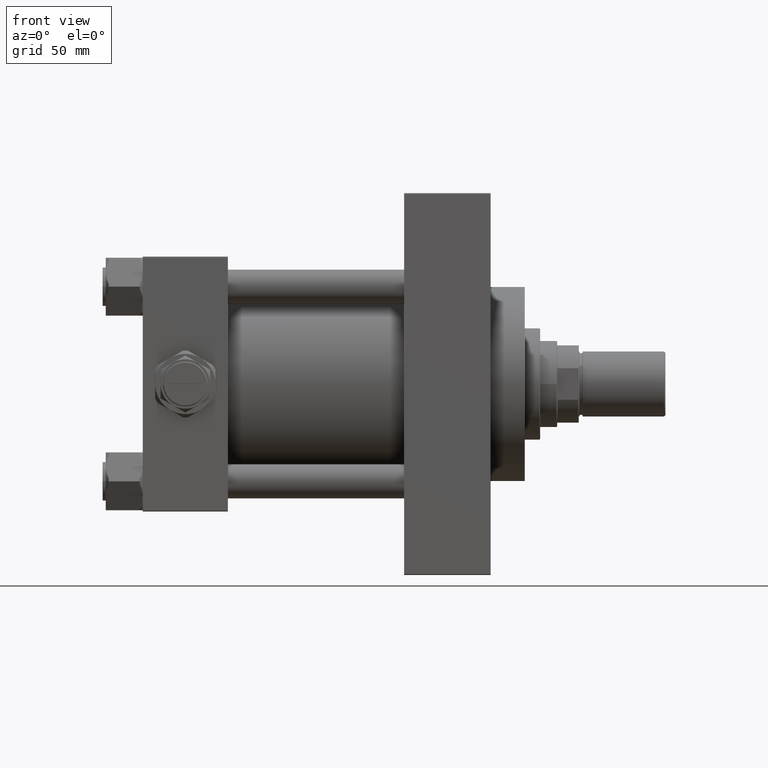
[diagram: clean part render]
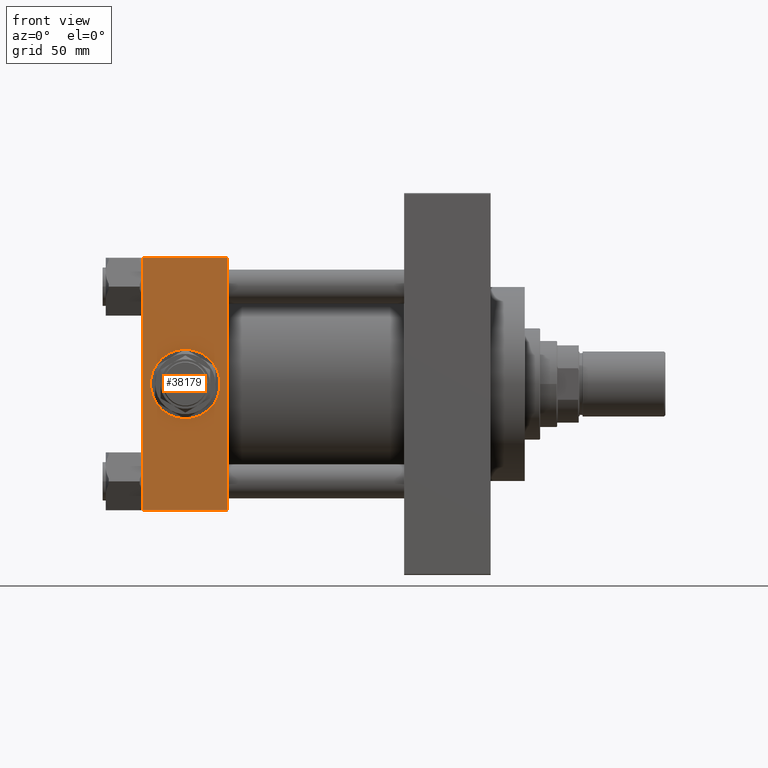
[diagram: same view with one face highlighted and labeled with its STEP entity id]
A machine part, front view. The second image highlights one B-rep face of the part: STEP entity #38179.
In plain terms, the highlighted planar face has unit normal (0, 1, -0).
Its self-contained STEP definition (entity closure, byte-faithful):
#31 = CARTESIAN_POINT ( 'NONE',  ( 0.000000000000000000, -82.49999999999997158, 82.00000000000001421 ) ) ;
#2478 = EDGE_CURVE ( 'NONE', #9871, #37705, #32784, .T. ) ;
#6146 = DIRECTION ( 'NONE',  ( 0.000000000000000000, 1.682156097916903588E-16, 1.000000000000000000 ) ) ;
#6705 = LINE ( 'NONE', #21357, #42390 ) ;
#7140 = DIRECTION ( 'NONE',  ( 0.000000000000000000, 1.000000000000000000, -1.682156097916903588E-16 ) ) ;
#8630 = EDGE_CURVE ( 'NONE', #49966, #42617, #43949, .T. ) ;
#9871 = VERTEX_POINT ( 'NONE', #25127 ) ;
#10889 = CARTESIAN_POINT ( 'NONE',  ( 27.50000000000000000, -82.49999999999998579, 1.387778780781445360E-14 ) ) ;
#11190 = EDGE_CURVE ( 'NONE', #29402, #9871, #23823, .T. ) ;
#11247 = AXIS2_PLACEMENT_3D ( 'NONE', #10889, #26318, #39170 ) ;
#13288 = DIRECTION ( 'NONE',  ( -1.000000000000000000, 0.000000000000000000, 0.000000000000000000 ) ) ;
#13589 = ORIENTED_EDGE ( 'NONE', *, *, #8630, .F. ) ;
#13765 = EDGE_CURVE ( 'NONE', #35799, #37705, #6705, .T. ) ;
#14060 = DIRECTION ( 'NONE',  ( 1.000000000000000000, 0.000000000000000000, 0.000000000000000000 ) ) ;
#17314 = AXIS2_PLACEMENT_3D ( 'NONE', #37899, #41682, #26534 ) ;
#19539 = CARTESIAN_POINT ( 'NONE',  ( 0.000000000000000000, -82.49999999999997158, 82.50000000000001421 ) ) ;
#21357 = CARTESIAN_POINT ( 'NONE',  ( 55.00000000000000000, -82.49999999999997158, 82.50000000000001421 ) ) ;
#23823 = LINE ( 'NONE', #19539, #46433 ) ;
#25127 = CARTESIAN_POINT ( 'NONE',  ( 0.000000000000000000, -82.50000000000000000, -81.99999999999998579 ) ) ;
#25955 = VECTOR ( 'NONE', #14060, 1000.000000000000000 ) ;
#26090 = PLANE ( 'NONE',  #32041 ) ;
#26201 = VECTOR ( 'NONE', #13288, 1000.000000000000000 ) ;
#26217 = ORIENTED_EDGE ( 'NONE', *, *, #2478, .T. ) ;
#26318 = DIRECTION ( 'NONE',  ( 0.000000000000000000, -1.000000000000000000, -8.673617379884036705E-17 ) ) ;
#26534 = DIRECTION ( 'NONE',  ( 0.000000000000000000, 0.000000000000000000, -1.000000000000000000 ) ) ;
#27640 = EDGE_LOOP ( 'NONE', ( #31173, #26217, #27971, #31576 ) ) ;
#27971 = ORIENTED_EDGE ( 'NONE', *, *, #13765, .F. ) ;
#28215 = CIRCLE ( 'NONE', #11247, 22.50000000000000711 ) ;
#28708 = EDGE_CURVE ( 'NONE', #35799, #29402, #44131, .T. ) ;
#29402 = VERTEX_POINT ( 'NONE', #31 ) ;
#30970 = CARTESIAN_POINT ( 'NONE',  ( 55.00000000000000000, -82.49999999999997158, 82.00000000000001421 ) ) ;
#31173 = ORIENTED_EDGE ( 'NONE', *, *, #11190, .T. ) ;
#31576 = ORIENTED_EDGE ( 'NONE', *, *, #28708, .T. ) ;
#32041 = AXIS2_PLACEMENT_3D ( 'NONE', #48588, #7140, #6146 ) ;
#32784 = LINE ( 'NONE', #44642, #25955 ) ;
#33014 = CARTESIAN_POINT ( 'NONE',  ( 55.00000000000000000, -82.49999999999997158, 82.00000000000001421 ) ) ;
#35165 = EDGE_LOOP ( 'NONE', ( #45106, #13589 ) ) ;
#35799 = VERTEX_POINT ( 'NONE', #30970 ) ;
#36278 = CARTESIAN_POINT ( 'NONE',  ( 55.00000000000000000, -82.50000000000000000, -81.99999999999998579 ) ) ;
#36777 = DIRECTION ( 'NONE',  ( 0.000000000000000000, -1.682156097916903588E-16, -1.000000000000000000 ) ) ;
#37705 = VERTEX_POINT ( 'NONE', #36278 ) ;
#37899 = CARTESIAN_POINT ( 'NONE',  ( 27.50000000000000000, -82.49999999999998579, 1.387778780781445360E-14 ) ) ;
#38179 = ADVANCED_FACE ( 'NONE', ( #41737, #41248 ), #26090, .F. ) ;
#39003 = CARTESIAN_POINT ( 'NONE',  ( 27.50000000000000000, -82.49999999999998579, -22.49999999999999289 ) ) ;
#39170 = DIRECTION ( 'NONE',  ( 0.000000000000000000, 0.000000000000000000, -1.000000000000000000 ) ) ;
#39235 = DIRECTION ( 'NONE',  ( 0.000000000000000000, -1.682156097916903588E-16, -1.000000000000000000 ) ) ;
#41248 = FACE_OUTER_BOUND ( 'NONE', #27640, .T. ) ;
#41682 = DIRECTION ( 'NONE',  ( 0.000000000000000000, -1.000000000000000000, -8.673617379884036705E-17 ) ) ;
#41737 = FACE_BOUND ( 'NONE', #35165, .T. ) ;
#42390 = VECTOR ( 'NONE', #36777, 1000.000000000000000 ) ;
#42617 = VERTEX_POINT ( 'NONE', #39003 ) ;
#43949 = CIRCLE ( 'NONE', #17314, 22.50000000000000711 ) ;
#44131 = LINE ( 'NONE', #33014, #26201 ) ;
#44642 = CARTESIAN_POINT ( 'NONE',  ( 55.00000000000000000, -82.50000000000000000, -81.99999999999998579 ) ) ;
#45106 = ORIENTED_EDGE ( 'NONE', *, *, #47707, .F. ) ;
#46433 = VECTOR ( 'NONE', #39235, 1000.000000000000000 ) ;
#46934 = CARTESIAN_POINT ( 'NONE',  ( 27.50000000000000355, -82.49999999999998579, 22.50000000000002132 ) ) ;
#47707 = EDGE_CURVE ( 'NONE', #42617, #49966, #28215, .T. ) ;
#48588 = CARTESIAN_POINT ( 'NONE',  ( 55.00000000000000000, -82.49999999999997158, 82.50000000000001421 ) ) ;
#49966 = VERTEX_POINT ( 'NONE', #46934 ) ;